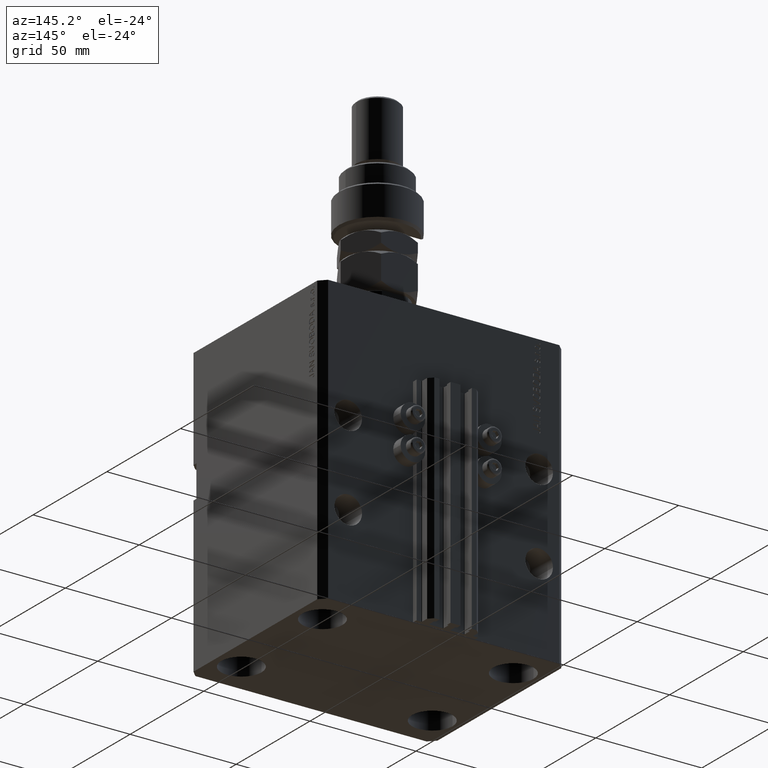
[diagram: clean part render]
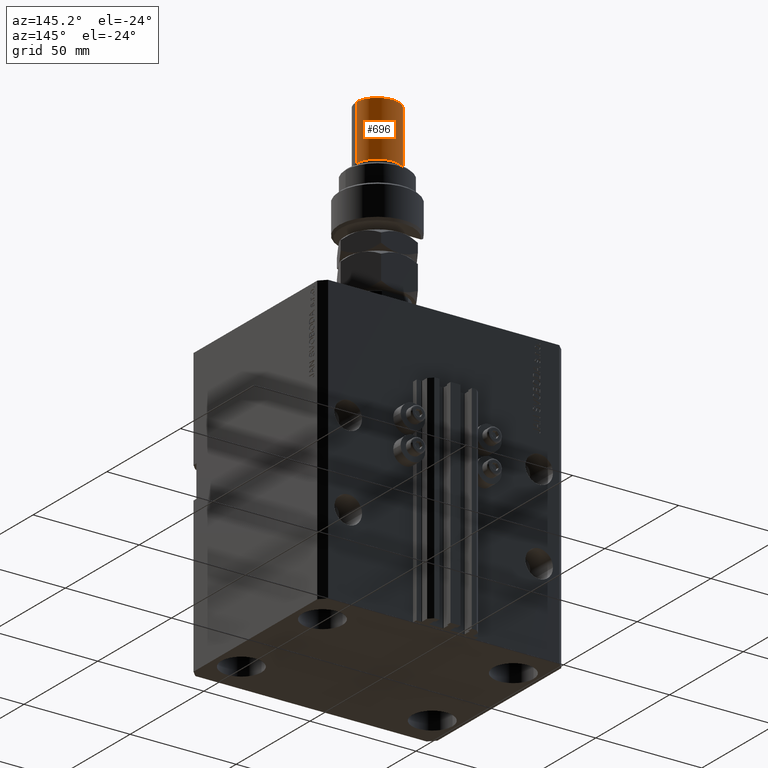
[diagram: same view with one face highlighted and labeled with its STEP entity id]
A machine part, auxiliary view. The second image highlights one B-rep face of the part: STEP entity #696.
In plain terms, the highlighted cylindrical surface (edge-blend (fillet) strip) has radius 10 mm, axis along (-0, -0, -1).
Its self-contained STEP definition (entity closure, byte-faithful):
#499 = AXIS2_PLACEMENT_3D ( 'NONE', #34050, #21199, #41425 ) ;
#696 = ADVANCED_FACE ( 'NONE', ( #21786 ), #13645, .T. ) ;
#2963 = EDGE_CURVE ( 'NONE', #35634, #21995, #7240, .T. ) ;
#3066 = ORIENTED_EDGE ( 'NONE', *, *, #6012, .T. ) ;
#4720 = LINE ( 'NONE', #20767, #14262 ) ;
#5750 = DIRECTION ( 'NONE',  ( -0.000000000000000000, -0.000000000000000000, -1.000000000000000000 ) ) ;
#6012 = EDGE_CURVE ( 'NONE', #18756, #28412, #25690, .T. ) ;
#7240 = CIRCLE ( 'NONE', #31572, 10.00000000000000000 ) ;
#8775 = DIRECTION ( 'NONE',  ( 1.000000000000000000, 0.000000000000000000, 0.000000000000000000 ) ) ;
#13645 = CYLINDRICAL_SURFACE ( 'NONE', #39065, 10.00000000000000000 ) ;
#14262 = VECTOR ( 'NONE', #39699, 1000.000000000000000 ) ;
#15422 = CARTESIAN_POINT ( 'NONE',  ( 10.00000000000000000, 1.224646799147353256E-15, 56.00000000000000711 ) ) ;
#16113 = EDGE_CURVE ( 'NONE', #21995, #18756, #39852, .T. ) ;
#18756 = VERTEX_POINT ( 'NONE', #43525 ) ;
#20456 = EDGE_LOOP ( 'NONE', ( #35131, #50105, #3066, #48071 ) ) ;
#20767 = CARTESIAN_POINT ( 'NONE',  ( -10.00000000000000000, 0.000000000000000000, 56.00000000000000711 ) ) ;
#21199 = DIRECTION ( 'NONE',  ( -0.000000000000000000, -0.000000000000000000, 1.000000000000000000 ) ) ;
#21390 = DIRECTION ( 'NONE',  ( 0.000000000000000000, 0.000000000000000000, -1.000000000000000000 ) ) ;
#21786 = FACE_OUTER_BOUND ( 'NONE', #20456, .T. ) ;
#21995 = VERTEX_POINT ( 'NONE', #27380 ) ;
#25690 = CIRCLE ( 'NONE', #499, 10.00000000000000000 ) ;
#26176 = EDGE_CURVE ( 'NONE', #35634, #28412, #4720, .T. ) ;
#27380 = CARTESIAN_POINT ( 'NONE',  ( 10.00000000000000000, 1.224646799147353256E-15, 54.99999999999998579 ) ) ;
#28412 = VERTEX_POINT ( 'NONE', #29303 ) ;
#29303 = CARTESIAN_POINT ( 'NONE',  ( -10.00000000000000000, 0.000000000000000000, 29.00000000000000711 ) ) ;
#31070 = VECTOR ( 'NONE', #43037, 1000.000000000000000 ) ;
#31572 = AXIS2_PLACEMENT_3D ( 'NONE', #32940, #21390, #8775 ) ;
#32940 = CARTESIAN_POINT ( 'NONE',  ( 0.000000000000000000, 0.000000000000000000, 54.99999999999998579 ) ) ;
#34050 = CARTESIAN_POINT ( 'NONE',  ( 0.000000000000000000, 0.000000000000000000, 29.00000000000000711 ) ) ;
#35131 = ORIENTED_EDGE ( 'NONE', *, *, #2963, .T. ) ;
#35634 = VERTEX_POINT ( 'NONE', #42054 ) ;
#39065 = AXIS2_PLACEMENT_3D ( 'NONE', #42567, #5750, #45723 ) ;
#39699 = DIRECTION ( 'NONE',  ( -0.000000000000000000, -0.000000000000000000, -1.000000000000000000 ) ) ;
#39852 = LINE ( 'NONE', #15422, #31070 ) ;
#41425 = DIRECTION ( 'NONE',  ( 1.000000000000000000, 0.000000000000000000, 0.000000000000000000 ) ) ;
#42054 = CARTESIAN_POINT ( 'NONE',  ( -10.00000000000000000, 0.000000000000000000, 54.99999999999998579 ) ) ;
#42567 = CARTESIAN_POINT ( 'NONE',  ( 0.000000000000000000, 0.000000000000000000, 56.00000000000000711 ) ) ;
#43037 = DIRECTION ( 'NONE',  ( -0.000000000000000000, -0.000000000000000000, -1.000000000000000000 ) ) ;
#43525 = CARTESIAN_POINT ( 'NONE',  ( 10.00000000000000000, 1.224646799147353256E-15, 29.00000000000000711 ) ) ;
#45723 = DIRECTION ( 'NONE',  ( -1.000000000000000000, 0.000000000000000000, 0.000000000000000000 ) ) ;
#48071 = ORIENTED_EDGE ( 'NONE', *, *, #26176, .F. ) ;
#50105 = ORIENTED_EDGE ( 'NONE', *, *, #16113, .T. ) ;